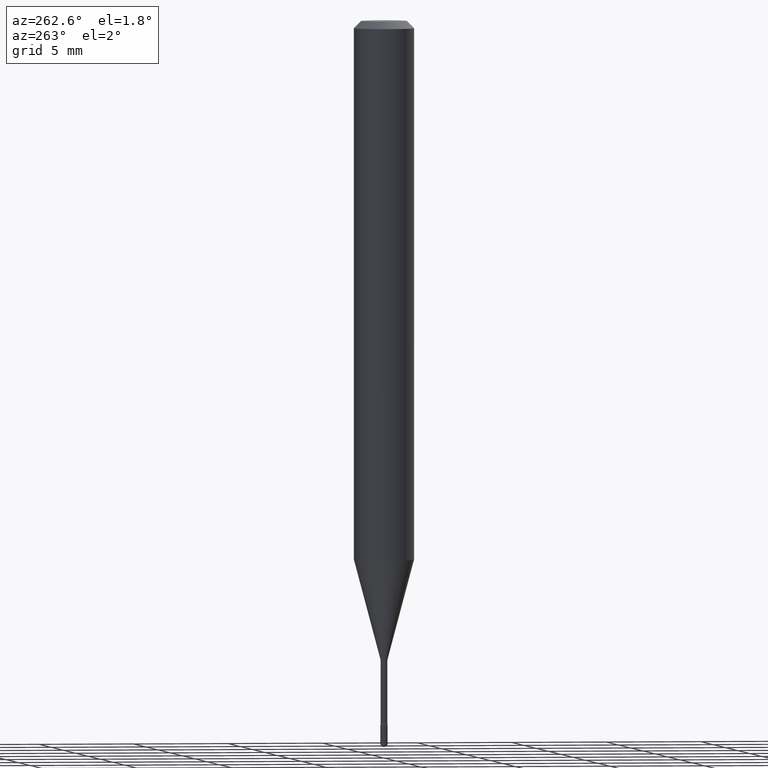
[diagram: clean part render]
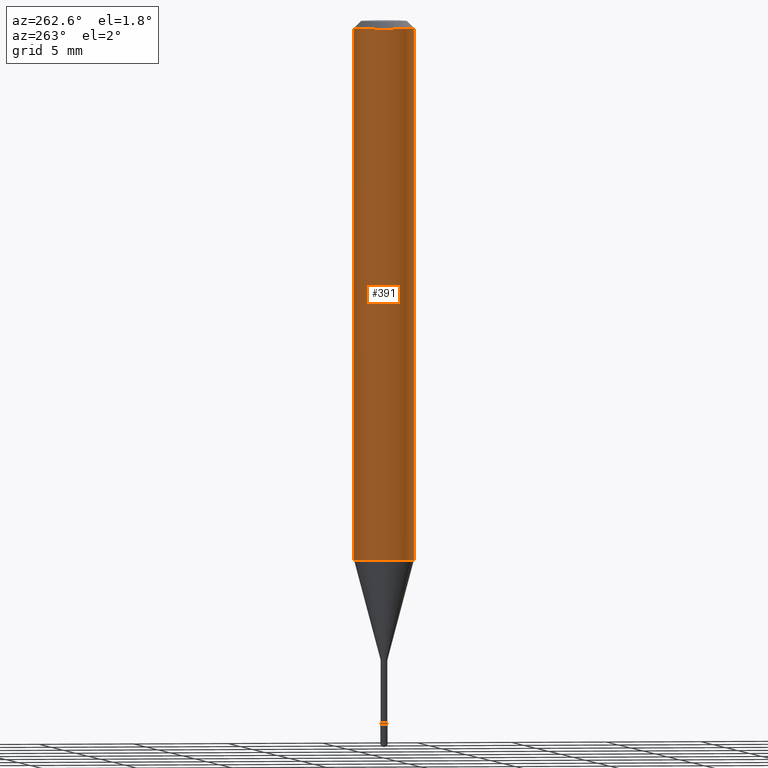
[diagram: same view with one face highlighted and labeled with its STEP entity id]
A machine part, auxiliary view. The second image highlights one B-rep face of the part: STEP entity #391.
In plain terms, the highlighted cylindrical surface (edge-blend (fillet) strip) has radius 1.5875 mm, axis along (-0, 0, 1).
Its self-contained STEP definition (entity closure, byte-faithful):
#5 = LINE ( 'NONE', #444, #307 ) ;
#7 = CARTESIAN_POINT ( 'NONE',  ( -4.364351673553645030E-16, -0.06250000000000388578, -1.113057782720306310 ) ) ;
#28 = LINE ( 'NONE', #204, #331 ) ;
#34 = VERTEX_POINT ( 'NONE', #7 ) ;
#38 = DIRECTION ( 'NONE',  ( -6.982962677686265922E-15, -1.000000000000000000, 3.483106191921935554E-15 ) ) ;
#47 = DIRECTION ( 'NONE',  ( -6.982962677686265922E-15, -1.000000000000000000, 4.370956789862821150E-15 ) ) ;
#76 = DIRECTION ( 'NONE',  ( -6.982962677686265922E-15, -1.000000000000000000, 3.491591371842049529E-15 ) ) ;
#125 = CARTESIAN_POINT ( 'NONE',  ( -4.364351673553912750E-16, -0.06250000000000005551, -0.01499999999999986587 ) ) ;
#155 = AXIS2_PLACEMENT_3D ( 'NONE', #492, #220, #47 ) ;
#157 = DIRECTION ( 'NONE',  ( -2.445391970552670248E-29, 3.491591371842049924E-15, 1.000000000000000000 ) ) ;
#169 = CARTESIAN_POINT ( 'NONE',  ( -1.169113584055446105E-44, 1.669184350826100908E-30, 4.780733988912460139E-16 ) ) ;
#173 = AXIS2_PLACEMENT_3D ( 'NONE', #235, #402, #38 ) ;
#204 = CARTESIAN_POINT ( 'NONE',  ( 4.440892098500625669E-16, 0.06250000000000000000, 2.598489381511179183E-16 ) ) ;
#208 = ORIENTED_EDGE ( 'NONE', *, *, #288, .T. ) ;
#220 = DIRECTION ( 'NONE',  ( -2.445391970552670248E-29, 3.491591371842049924E-15, 1.000000000000000000 ) ) ;
#223 = ORIENTED_EDGE ( 'NONE', *, *, #332, .F. ) ;
#235 = CARTESIAN_POINT ( 'NONE',  ( 3.668087955829025480E-31, -5.237387057763103556E-17, -0.01500000000000008271 ) ) ;
#252 = CIRCLE ( 'NONE', #155, 0.06250000000000000000 ) ;
#288 = EDGE_CURVE ( 'NONE', #34, #451, #5, .T. ) ;
#290 = CYLINDRICAL_SURFACE ( 'NONE', #299, 0.06250000000000000000 ) ;
#299 = AXIS2_PLACEMENT_3D ( 'NONE', #169, #157, #76 ) ;
#307 = VECTOR ( 'NONE', #544, 39.37007874015748143 ) ;
#327 = CARTESIAN_POINT ( 'NONE',  ( 4.440892098500896347E-16, 0.06249999999999611422, -1.113057782720306754 ) ) ;
#331 = VECTOR ( 'NONE', #552, 39.37007874015748143 ) ;
#332 = EDGE_CURVE ( 'NONE', #447, #451, #425, .T. ) ;
#333 = CARTESIAN_POINT ( 'NONE',  ( 4.440892098500899305E-16, 0.06249999999999995143, -0.01500000000000030129 ) ) ;
#346 = ORIENTED_EDGE ( 'NONE', *, *, #426, .F. ) ;
#391 = ADVANCED_FACE ( 'NONE', ( #411 ), #290, .T. ) ;
#395 = VERTEX_POINT ( 'NONE', #327 ) ;
#402 = DIRECTION ( 'NONE',  ( -2.445391970552670248E-29, 3.491591371842049924E-15, 1.000000000000000000 ) ) ;
#411 = FACE_OUTER_BOUND ( 'NONE', #455, .T. ) ;
#425 = CIRCLE ( 'NONE', #173, 0.06250000000000000000 ) ;
#426 = EDGE_CURVE ( 'NONE', #395, #447, #28, .T. ) ;
#428 = ORIENTED_EDGE ( 'NONE', *, *, #548, .T. ) ;
#444 = CARTESIAN_POINT ( 'NONE',  ( -4.364351673553916201E-16, -0.06250000000000000000, 6.962978596313741588E-16 ) ) ;
#447 = VERTEX_POINT ( 'NONE', #333 ) ;
#451 = VERTEX_POINT ( 'NONE', #125 ) ;
#455 = EDGE_LOOP ( 'NONE', ( #346, #428, #208, #223 ) ) ;
#492 = CARTESIAN_POINT ( 'NONE',  ( 2.721862564625396100E-29, -3.886342950507865712E-15, -1.113057782720306532 ) ) ;
#544 = DIRECTION ( 'NONE',  ( -2.445391970552669967E-29, 3.491591371842049529E-15, 1.000000000000000000 ) ) ;
#548 = EDGE_CURVE ( 'NONE', #395, #34, #252, .T. ) ;
#552 = DIRECTION ( 'NONE',  ( -2.445391970552669967E-29, 3.491591371842049529E-15, 1.000000000000000000 ) ) ;